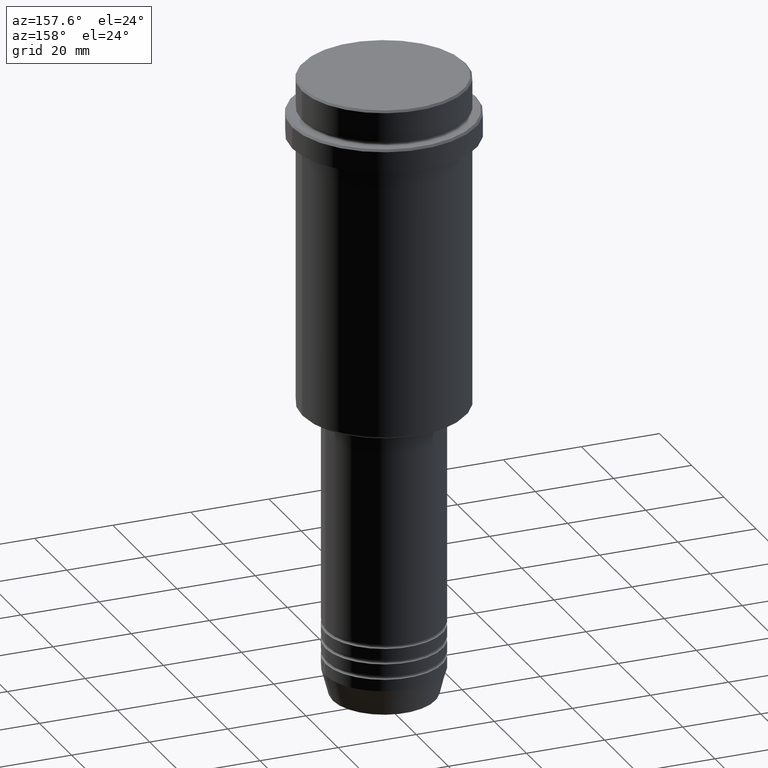
[diagram: clean part render]
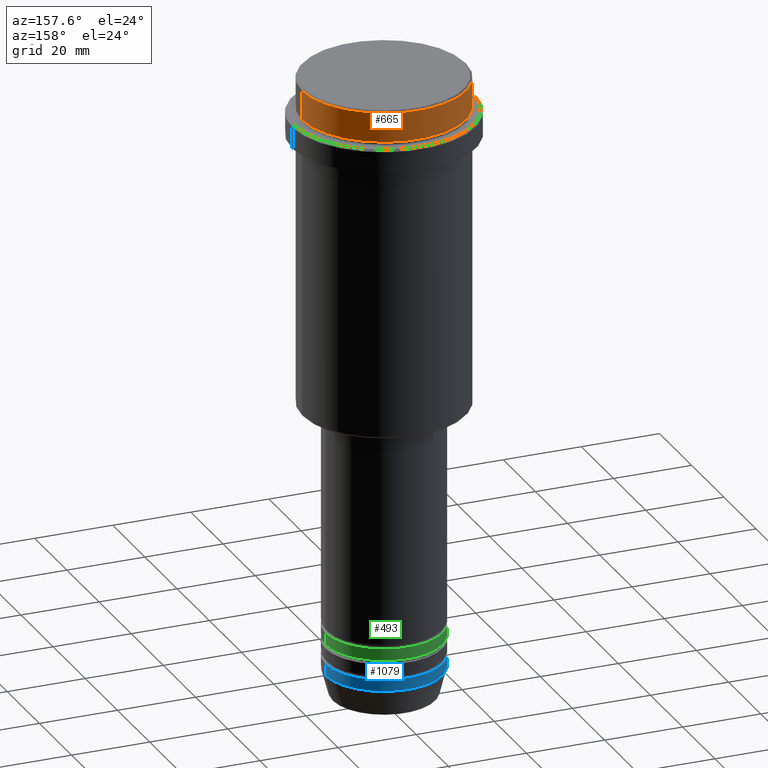
[diagram: same view with three faces highlighted in distinct colors, each labeled with its STEP entity id]
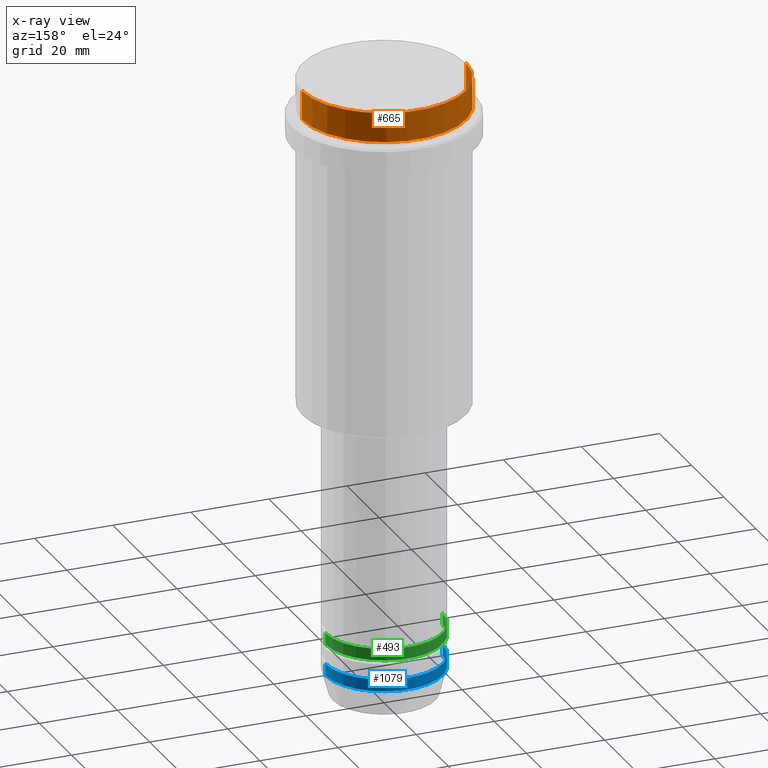
[diagram: x-ray of the same camera — body ghosted, the three highlighted faces saturated]
A machine part, auxiliary view with three faces highlighted in distinct colors.
The next image is the same camera in x-ray (body ghosted, the three faces saturated) — at least one of them is partly hidden behind the body in this view.
Their STEP definitions:

[orange] entity #665 — the highlighted cylindrical surface (partial cylindrical patch) has radius 21 mm, axis along (-0, -0, 1).
#28 = ORIENTED_EDGE ( 'NONE', *, *, #703, .T. ) ;
#94 = AXIS2_PLACEMENT_3D ( 'NONE', #986, #340, #767 ) ;
#104 = ORIENTED_EDGE ( 'NONE', *, *, #721, .F. ) ;
#142 = CARTESIAN_POINT ( 'NONE',  ( -21.00000000000000000, 2.571758278209441661E-15, 0.000000000000000000 ) ) ;
#173 = DIRECTION ( 'NONE',  ( -0.000000000000000000, -0.000000000000000000, 1.000000000000000000 ) ) ;
#235 = VECTOR ( 'NONE', #900, 1000.000000000000000 ) ;
#262 = EDGE_CURVE ( 'NONE', #1270, #938, #455, .T. ) ;
#290 = EDGE_LOOP ( 'NONE', ( #28, #1306, #1131, #104 ) ) ;
#340 = DIRECTION ( 'NONE',  ( 0.000000000000000000, 0.000000000000000000, -1.000000000000000000 ) ) ;
#346 = VECTOR ( 'NONE', #841, 1000.000000000000000 ) ;
#430 = VERTEX_POINT ( 'NONE', #1267 ) ;
#455 = CIRCLE ( 'NONE', #94, 21.00000000000000000 ) ;
#592 = AXIS2_PLACEMENT_3D ( 'NONE', #1300, #1394, #930 ) ;
#606 = DIRECTION ( 'NONE',  ( 1.000000000000000000, 0.000000000000000000, 0.000000000000000000 ) ) ;
#665 = ADVANCED_FACE ( 'NONE', ( #732 ), #834, .T. ) ;
#703 = EDGE_CURVE ( 'NONE', #881, #430, #1045, .T. ) ;
#721 = EDGE_CURVE ( 'NONE', #881, #938, #1056, .T. ) ;
#732 = FACE_OUTER_BOUND ( 'NONE', #290, .T. ) ;
#751 = CARTESIAN_POINT ( 'NONE',  ( 21.00000000000000000, 0.000000000000000000, -7.999999999999998224 ) ) ;
#754 = CARTESIAN_POINT ( 'NONE',  ( -21.00000000000000000, 2.571758278209441661E-15, -0.5000000000000386358 ) ) ;
#767 = DIRECTION ( 'NONE',  ( 1.000000000000000000, 0.000000000000000000, 0.000000000000000000 ) ) ;
#834 = CYLINDRICAL_SURFACE ( 'NONE', #592, 21.00000000000000000 ) ;
#841 = DIRECTION ( 'NONE',  ( -0.000000000000000000, -0.000000000000000000, 1.000000000000000000 ) ) ;
#881 = VERTEX_POINT ( 'NONE', #751 ) ;
#900 = DIRECTION ( 'NONE',  ( -0.000000000000000000, -0.000000000000000000, 1.000000000000000000 ) ) ;
#930 = DIRECTION ( 'NONE',  ( 1.000000000000000000, 0.000000000000000000, 0.000000000000000000 ) ) ;
#938 = VERTEX_POINT ( 'NONE', #1411 ) ;
#986 = CARTESIAN_POINT ( 'NONE',  ( 0.000000000000000000, 0.000000000000000000, -0.5000000000000386358 ) ) ;
#1039 = CARTESIAN_POINT ( 'NONE',  ( 0.000000000000000000, 0.000000000000000000, -7.999999999999998224 ) ) ;
#1045 = CIRCLE ( 'NONE', #1071, 21.00000000000000000 ) ;
#1046 = CARTESIAN_POINT ( 'NONE',  ( 21.00000000000000000, 0.000000000000000000, 0.000000000000000000 ) ) ;
#1056 = LINE ( 'NONE', #1046, #346 ) ;
#1057 = EDGE_CURVE ( 'NONE', #430, #1270, #1222, .T. ) ;
#1071 = AXIS2_PLACEMENT_3D ( 'NONE', #1039, #173, #606 ) ;
#1131 = ORIENTED_EDGE ( 'NONE', *, *, #262, .T. ) ;
#1222 = LINE ( 'NONE', #142, #235 ) ;
#1267 = CARTESIAN_POINT ( 'NONE',  ( -21.00000000000000000, 2.571758278209441661E-15, -7.999999999999998224 ) ) ;
#1270 = VERTEX_POINT ( 'NONE', #754 ) ;
#1300 = CARTESIAN_POINT ( 'NONE',  ( 0.000000000000000000, 0.000000000000000000, 0.000000000000000000 ) ) ;
#1306 = ORIENTED_EDGE ( 'NONE', *, *, #1057, .T. ) ;
#1394 = DIRECTION ( 'NONE',  ( -0.000000000000000000, -0.000000000000000000, 1.000000000000000000 ) ) ;
#1411 = CARTESIAN_POINT ( 'NONE',  ( 21.00000000000000000, 0.000000000000000000, -0.5000000000000386358 ) ) ;

[blue] entity #1079 — the highlighted cylindrical surface (partial cylindrical patch) has radius 15 mm, axis along (-0, -0, 1).
#10 = ORIENTED_EDGE ( 'NONE', *, *, #427, .F. ) ;
#32 = DIRECTION ( 'NONE',  ( -0.000000000000000000, -0.000000000000000000, 1.000000000000000000 ) ) ;
#92 = LINE ( 'NONE', #692, #181 ) ;
#137 = DIRECTION ( 'NONE',  ( 1.000000000000000000, 0.000000000000000000, 0.000000000000000000 ) ) ;
#181 = VECTOR ( 'NONE', #32, 1000.000000000000000 ) ;
#231 = CIRCLE ( 'NONE', #1232, 15.00000000000000000 ) ;
#310 = CARTESIAN_POINT ( 'NONE',  ( 0.000000000000000000, 0.000000000000000000, -153.0000000000000000 ) ) ;
#358 = DIRECTION ( 'NONE',  ( -0.000000000000000000, -0.000000000000000000, 1.000000000000000000 ) ) ;
#380 = EDGE_CURVE ( 'NONE', #458, #593, #231, .T. ) ;
#390 = EDGE_CURVE ( 'NONE', #1213, #593, #503, .T. ) ;
#408 = DIRECTION ( 'NONE',  ( -0.000000000000000000, -0.000000000000000000, 1.000000000000000000 ) ) ;
#427 = EDGE_CURVE ( 'NONE', #891, #458, #92, .T. ) ;
#458 = VERTEX_POINT ( 'NONE', #909 ) ;
#470 = CARTESIAN_POINT ( 'NONE',  ( 0.000000000000000000, 0.000000000000000000, 0.000000000000000000 ) ) ;
#503 = LINE ( 'NONE', #1295, #1212 ) ;
#509 = DIRECTION ( 'NONE',  ( -0.000000000000000000, -0.000000000000000000, 1.000000000000000000 ) ) ;
#593 = VERTEX_POINT ( 'NONE', #1122 ) ;
#654 = EDGE_LOOP ( 'NONE', ( #941, #911, #1363, #10 ) ) ;
#675 = EDGE_CURVE ( 'NONE', #891, #1213, #1233, .T. ) ;
#692 = CARTESIAN_POINT ( 'NONE',  ( 15.00000000000000000, 0.000000000000000000, 0.000000000000000000 ) ) ;
#729 = CARTESIAN_POINT ( 'NONE',  ( 0.000000000000000000, 0.000000000000000000, -150.0000000000000000 ) ) ;
#817 = AXIS2_PLACEMENT_3D ( 'NONE', #470, #358, #137 ) ;
#891 = VERTEX_POINT ( 'NONE', #1200 ) ;
#909 = CARTESIAN_POINT ( 'NONE',  ( 15.00000000000000000, 0.000000000000000000, -150.0000000000000000 ) ) ;
#911 = ORIENTED_EDGE ( 'NONE', *, *, #390, .T. ) ;
#922 = CYLINDRICAL_SURFACE ( 'NONE', #817, 15.00000000000000000 ) ;
#937 = CARTESIAN_POINT ( 'NONE',  ( -15.00000000000000000, 1.836970198721029589E-15, -153.0000000000000000 ) ) ;
#940 = DIRECTION ( 'NONE',  ( -0.000000000000000000, -0.000000000000000000, 1.000000000000000000 ) ) ;
#941 = ORIENTED_EDGE ( 'NONE', *, *, #675, .T. ) ;
#1061 = DIRECTION ( 'NONE',  ( 1.000000000000000000, 0.000000000000000000, 0.000000000000000000 ) ) ;
#1079 = ADVANCED_FACE ( 'NONE', ( #1242 ), #922, .T. ) ;
#1122 = CARTESIAN_POINT ( 'NONE',  ( -15.00000000000000000, 1.836970198721029589E-15, -150.0000000000000000 ) ) ;
#1181 = DIRECTION ( 'NONE',  ( 1.000000000000000000, 0.000000000000000000, 0.000000000000000000 ) ) ;
#1200 = CARTESIAN_POINT ( 'NONE',  ( 15.00000000000000000, 0.000000000000000000, -153.0000000000000000 ) ) ;
#1212 = VECTOR ( 'NONE', #940, 1000.000000000000000 ) ;
#1213 = VERTEX_POINT ( 'NONE', #937 ) ;
#1232 = AXIS2_PLACEMENT_3D ( 'NONE', #729, #408, #1181 ) ;
#1233 = CIRCLE ( 'NONE', #1346, 15.00000000000000000 ) ;
#1242 = FACE_OUTER_BOUND ( 'NONE', #654, .T. ) ;
#1295 = CARTESIAN_POINT ( 'NONE',  ( -15.00000000000000000, 1.836970198721029589E-15, 0.000000000000000000 ) ) ;
#1346 = AXIS2_PLACEMENT_3D ( 'NONE', #310, #509, #1061 ) ;
#1363 = ORIENTED_EDGE ( 'NONE', *, *, #380, .F. ) ;

[green] entity #493 — the highlighted cylindrical surface (partial cylindrical patch) has radius 15 mm, axis along (-0, -0, 1).
#8 = VERTEX_POINT ( 'NONE', #377 ) ;
#68 = CIRCLE ( 'NONE', #636, 15.00000000000000000 ) ;
#83 = VERTEX_POINT ( 'NONE', #1298 ) ;
#90 = CARTESIAN_POINT ( 'NONE',  ( -15.00000000000000000, 1.836970198721029589E-15, 0.000000000000000000 ) ) ;
#99 = CARTESIAN_POINT ( 'NONE',  ( 0.000000000000000000, 0.000000000000000000, 0.000000000000000000 ) ) ;
#180 = VERTEX_POINT ( 'NONE', #1133 ) ;
#232 = DIRECTION ( 'NONE',  ( 1.000000000000000000, 0.000000000000000000, 0.000000000000000000 ) ) ;
#289 = CARTESIAN_POINT ( 'NONE',  ( -15.00000000000000000, 1.836970198721029589E-15, -141.9999999999999147 ) ) ;
#300 = CARTESIAN_POINT ( 'NONE',  ( 0.000000000000000000, 0.000000000000000000, -144.9999999999999147 ) ) ;
#301 = ORIENTED_EDGE ( 'NONE', *, *, #852, .F. ) ;
#353 = DIRECTION ( 'NONE',  ( -0.000000000000000000, -0.000000000000000000, 1.000000000000000000 ) ) ;
#376 = CARTESIAN_POINT ( 'NONE',  ( 15.00000000000000000, 0.000000000000000000, 0.000000000000000000 ) ) ;
#377 = CARTESIAN_POINT ( 'NONE',  ( 15.00000000000000000, 0.000000000000000000, -144.9999999999999147 ) ) ;
#397 = DIRECTION ( 'NONE',  ( -0.000000000000000000, -0.000000000000000000, 1.000000000000000000 ) ) ;
#431 = DIRECTION ( 'NONE',  ( -0.000000000000000000, -0.000000000000000000, 1.000000000000000000 ) ) ;
#468 = DIRECTION ( 'NONE',  ( -0.000000000000000000, -0.000000000000000000, 1.000000000000000000 ) ) ;
#487 = EDGE_CURVE ( 'NONE', #8, #83, #580, .T. ) ;
#493 = ADVANCED_FACE ( 'NONE', ( #1247 ), #597, .T. ) ;
#502 = LINE ( 'NONE', #90, #613 ) ;
#580 = LINE ( 'NONE', #376, #657 ) ;
#590 = ORIENTED_EDGE ( 'NONE', *, *, #487, .F. ) ;
#597 = CYLINDRICAL_SURFACE ( 'NONE', #1258, 15.00000000000000000 ) ;
#613 = VECTOR ( 'NONE', #397, 1000.000000000000000 ) ;
#636 = AXIS2_PLACEMENT_3D ( 'NONE', #1206, #431, #232 ) ;
#657 = VECTOR ( 'NONE', #468, 1000.000000000000000 ) ;
#779 = EDGE_CURVE ( 'NONE', #180, #1197, #502, .T. ) ;
#792 = ORIENTED_EDGE ( 'NONE', *, *, #779, .T. ) ;
#849 = DIRECTION ( 'NONE',  ( 1.000000000000000000, 0.000000000000000000, 0.000000000000000000 ) ) ;
#852 = EDGE_CURVE ( 'NONE', #83, #1197, #68, .T. ) ;
#905 = AXIS2_PLACEMENT_3D ( 'NONE', #300, #959, #849 ) ;
#959 = DIRECTION ( 'NONE',  ( -0.000000000000000000, -0.000000000000000000, 1.000000000000000000 ) ) ;
#1025 = ORIENTED_EDGE ( 'NONE', *, *, #1156, .T. ) ;
#1133 = CARTESIAN_POINT ( 'NONE',  ( -15.00000000000000000, 1.836970198721029589E-15, -144.9999999999999147 ) ) ;
#1156 = EDGE_CURVE ( 'NONE', #8, #180, #1351, .T. ) ;
#1194 = EDGE_LOOP ( 'NONE', ( #1025, #792, #301, #590 ) ) ;
#1197 = VERTEX_POINT ( 'NONE', #289 ) ;
#1206 = CARTESIAN_POINT ( 'NONE',  ( 0.000000000000000000, 0.000000000000000000, -141.9999999999999147 ) ) ;
#1247 = FACE_OUTER_BOUND ( 'NONE', #1194, .T. ) ;
#1258 = AXIS2_PLACEMENT_3D ( 'NONE', #99, #353, #1410 ) ;
#1298 = CARTESIAN_POINT ( 'NONE',  ( 15.00000000000000000, 0.000000000000000000, -141.9999999999999147 ) ) ;
#1351 = CIRCLE ( 'NONE', #905, 15.00000000000000000 ) ;
#1410 = DIRECTION ( 'NONE',  ( 1.000000000000000000, 0.000000000000000000, 0.000000000000000000 ) ) ;